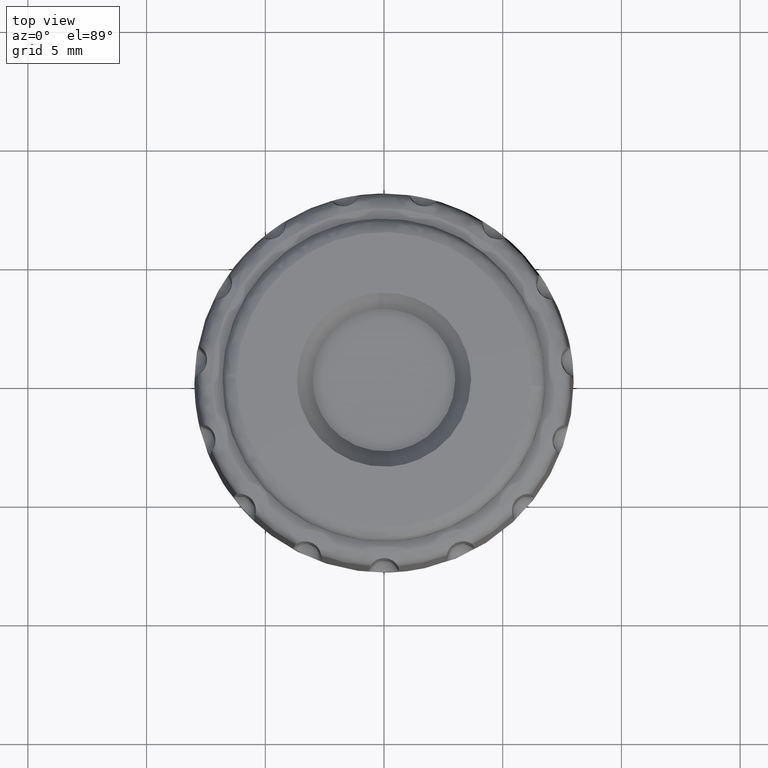
[diagram: clean part render]
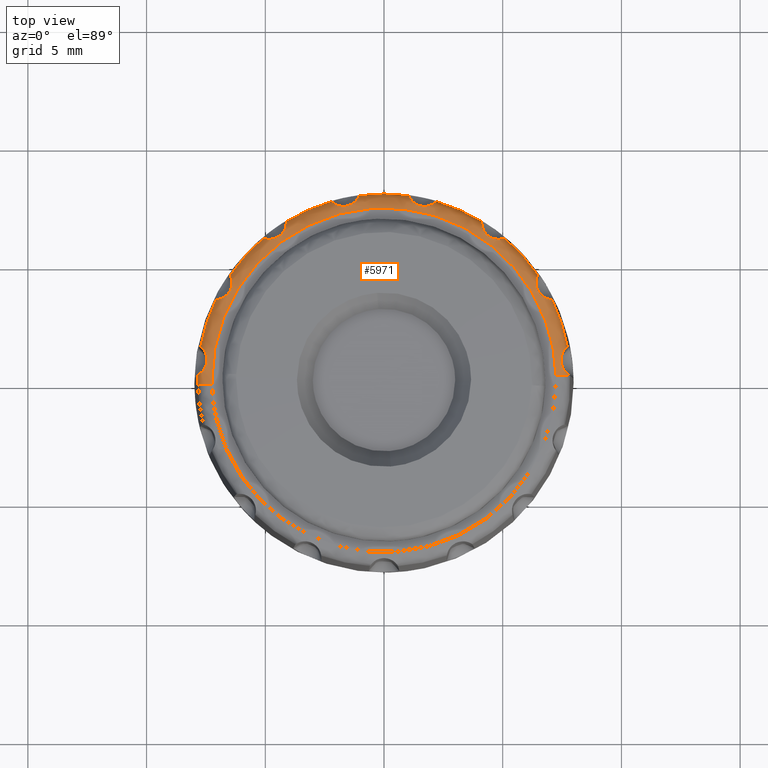
[diagram: same view with one face highlighted and labeled with its STEP entity id]
A machine part, top view. The second image highlights one B-rep face of the part: STEP entity #5971.
In plain terms, the highlighted face is a freeform B-spline surface patch.
Its self-contained STEP definition (entity closure, byte-faithful):
#4390=CARTESIAN_POINT('',(7.846542354548671,0.197246650876180,9.411476093503897));
#4391=VERTEX_POINT('',#4390);
#4400=CARTESIAN_POINT('',(7.721872305810130,1.406982224056692,9.412215999999900));
#4401=VERTEX_POINT('',#4400);
#4409=CARTESIAN_POINT('',(7.721872305810130,1.406982224056692,9.412215999999900));
#4410=CARTESIAN_POINT('',(7.721117612842456,1.406373482650914,9.453916658312460));
#4411=CARTESIAN_POINT('',(7.716546259949650,1.402747407950085,9.494703133304260));
#4412=CARTESIAN_POINT('',(7.704382056428240,1.392425231431946,9.554530500564988));
#4413=CARTESIAN_POINT('',(7.699400647037689,1.388121967861012,9.574361139239034));
#4414=CARTESIAN_POINT('',(7.687850329254422,1.377750221601330,9.612964245185101));
#4415=CARTESIAN_POINT('',(7.681328286460447,1.371723967777374,9.631624095791542));
#4416=CARTESIAN_POINT('',(7.666988684599390,1.357832158165921,9.667679910472774));
#4417=CARTESIAN_POINT('',(7.659170290989231,1.349966728732495,9.685075578569474));
#4418=CARTESIAN_POINT('',(7.642427432206797,1.332140760907272,9.718580455860250));
#4419=CARTESIAN_POINT('',(7.633430504239358,1.322090148266983,9.734796539877543));
#4420=CARTESIAN_POINT('',(7.605849819685999,1.289185079154634,9.780246086397977));
#4421=CARTESIAN_POINT('',(7.586595862351392,1.263543682846567,9.806558188972717));
#4422=CARTESIAN_POINT('',(7.558313980404289,1.218758027318629,9.840683047359628));
#4423=CARTESIAN_POINT('',(7.549013849107958,1.202787350798265,9.851122902274035));
#4424=CARTESIAN_POINT('',(7.531443534889555,1.169606807986927,9.869827023659175));
#4425=CARTESIAN_POINT('',(7.523103110801922,1.152291422299820,9.878177357262988));
#4426=CARTESIAN_POINT('',(7.499761709713219,1.098205209316192,9.900634836975376));
#4427=CARTESIAN_POINT('',(7.486446446843477,1.059033461935675,9.912160037961414));
#4428=CARTESIAN_POINT('',(7.471686135671589,0.998826532829851,9.925068638109872));
#4429=CARTESIAN_POINT('',(7.467581209354346,0.978416872301414,9.928681565801890));
#4430=CARTESIAN_POINT('',(7.461085659630607,0.936942325667759,9.934745167269485));
#4431=CARTESIAN_POINT('',(7.458691548167689,0.915769991909279,9.937202849940764));
#4432=CARTESIAN_POINT('',(7.454299303631226,0.852377360483450,9.942943193825261));
#4433=CARTESIAN_POINT('',(7.455005378453560,0.810140332136143,9.944690814411171));
#4434=CARTESIAN_POINT('',(7.461531443557656,0.746840428916346,9.944650769609007));
#4435=CARTESIAN_POINT('',(7.464646621863363,0.725638010822807,9.944175420141310));
#4436=CARTESIAN_POINT('',(7.472653987350538,0.683850943802031,9.942270578210957));
#4437=CARTESIAN_POINT('',(7.477525911447743,0.663308766751554,9.940848913997691));
#4438=CARTESIAN_POINT('',(7.494643677655452,0.602717224338607,9.935057736009503));
#4439=CARTESIAN_POINT('',(7.509380034122700,0.563692123155797,9.929215263196236));
#4440=CARTESIAN_POINT('',(7.545316103148545,0.488551304133145,9.911764465890164));
#4441=CARTESIAN_POINT('',(7.565977058670350,0.453650401028405,9.900378239336705));
#4442=CARTESIAN_POINT('',(7.599566737170519,0.405866885701438,9.878090663372383));
#4443=CARTESIAN_POINT('',(7.611214996985162,0.390666065698470,9.869777671247265));
#4444=CARTESIAN_POINT('',(7.635214370676316,0.361730787654032,9.851052753833258));
#4445=CARTESIAN_POINT('',(7.647612718681963,0.347965185329158,9.840581195702630));
#4446=CARTESIAN_POINT('',(7.684258051110152,0.310104081433584,9.806645935506699));
#4447=CARTESIAN_POINT('',(7.708331982454190,0.288943443956489,9.780414706692898));
#4448=CARTESIAN_POINT('',(7.742176316864100,0.262309935401218,9.734886311265791));
#4449=CARTESIAN_POINT('',(7.753038147369805,0.254325485182628,9.718699492875610));
#4450=CARTESIAN_POINT('',(7.773114758543574,0.240298517341015,9.685198400415592));
#4451=CARTESIAN_POINT('',(7.782418755644672,0.234184983006149,9.667771210259618));
#4452=CARTESIAN_POINT('',(7.807894863312343,0.218134240517224,9.613473082280525));
#4453=CARTESIAN_POINT('',(7.821622237143789,0.210471129621659,9.574292208103078));
#4454=CARTESIAN_POINT('',(7.840375609508160,0.200329965730659,9.494529114876153));
#4455=CARTESIAN_POINT('',(7.845678614518684,0.197685961322820,9.453230419309332));
#4456=CARTESIAN_POINT('',(7.846542354548671,0.197246650876180,9.411476093503897));
#4457=B_SPLINE_CURVE_WITH_KNOTS('',3,(#4409,#4410,#4411,#4412,#4413,#4414,#4415,#4416,#4417,#4418,#4419,#4420,#4421,#4422,#4423,#4424,#4425,#4426,#4427,#4428,#4429,#4430,#4431,#4432,#4433,#4434,#4435,#4436,#4437,#4438,#4439,#4440,#4441,#4442,#4443,#4444,#4445,#4446,#4447,#4448,#4449,#4450,#4451,#4452,#4453,#4454,#4455,#4456),.UNSPECIFIED.,.F.,.U.,(4,2,2,2,2,2,2,2,2,2,2,2,2,2,2,2,2,2,2,2,2,2,2,4),(0.0,0.062500000000003,0.093750000000003,0.125000000000003,0.156250000000004,0.187500000000004,0.250000000000006,0.281250000000007,0.312500000000007,0.375000000000007,0.406250000000006,0.437500000000006,0.500000000000006,0.531250000000006,0.562500000000006,0.625000000000006,0.687500000000005,0.718750000000005,0.750000000000004,0.812500000000004,0.843750000000004,0.875000000000003,0.937500000000002,1.0),.UNSPECIFIED.);
#4458=EDGE_CURVE('',#4401,#4391,#4457,.T.);
#4481=CARTESIAN_POINT('',(7.074129325331851,3.400530131395555,9.412215999999900));
#4482=VERTEX_POINT('',#4481);
#4491=CARTESIAN_POINT('',(6.482010142788901,4.426110639696080,9.412215999999900));
#4492=VERTEX_POINT('',#4491);
#4500=CARTESIAN_POINT('',(6.482010142788903,4.426110639696085,9.412215999999901));
#4501=CARTESIAN_POINT('',(6.481562312190985,4.425260060233469,9.453916978650057));
#4502=CARTESIAN_POINT('',(6.478825490045807,4.420162378447508,9.494705356962381));
#4503=CARTESIAN_POINT('',(6.471809163877285,4.405998412010201,9.554538196299596));
#4504=CARTESIAN_POINT('',(6.468966009681444,4.400130267479691,9.574371121964862));
#4505=CARTESIAN_POINT('',(6.462529368794649,4.386173399317736,9.612979769021209));
#4506=CARTESIAN_POINT('',(6.455395325381204,4.370109700233718,9.650306229437662));
#4507=CARTESIAN_POINT('',(6.447349558743116,4.349711265213628,9.685106089512376));
#4508=CARTESIAN_POINT('',(6.439123144746449,4.326995675797720,9.718620688036369));
#4509=CARTESIAN_POINT('',(6.434889120848323,4.314369489779508,9.734842281239377));
#4510=CARTESIAN_POINT('',(6.422737580990151,4.273799311015933,9.780309983706946));
#4511=CARTESIAN_POINT('',(6.415310664116266,4.243100838555000,9.806636376722524));
#4512=CARTESIAN_POINT('',(6.407217417173983,4.191670654085585,9.840786535082374));
#4513=CARTESIAN_POINT('',(6.405047781827621,4.173651863194812,9.851235461969329));
#4514=CARTESIAN_POINT('',(6.402138215484778,4.136932943756942,9.869958542599813));
#4515=CARTESIAN_POINT('',(6.401375925788222,4.118110164900845,9.878318822856286));
#4516=CARTESIAN_POINT('',(6.401467960020995,4.060424729297188,9.900807544248762));
#4517=CARTESIAN_POINT('',(6.404809673756259,4.020115209901824,9.912355600197692));
#4518=CARTESIAN_POINT('',(6.415151097445732,3.960494205596257,9.925299691225186));
#4519=CARTESIAN_POINT('',(6.419476691724560,3.940650932078134,9.928924707190696));
#4520=CARTESIAN_POINT('',(6.429951039257058,3.901082792806886,9.935012990686717));
#4521=CARTESIAN_POINT('',(6.436139099045214,3.881260877222747,9.937483331904756));
#4522=CARTESIAN_POINT('',(6.457199658434369,3.823047565485129,9.943261753614442));
#4523=CARTESIAN_POINT('',(6.474545979494460,3.785747888319517,9.945034975578091));
#4524=CARTESIAN_POINT('',(6.505531276979104,3.732085059577762,9.945033646851440));
#4525=CARTESIAN_POINT('',(6.516757677453800,3.714490866700090,9.944571324500885));
#4526=CARTESIAN_POINT('',(6.540587457104339,3.680579443860932,9.942692276019683));
#4527=CARTESIAN_POINT('',(6.553155554098512,3.664291719514169,9.941283351151190));
#4528=CARTESIAN_POINT('',(6.592733285137359,3.617373488037235,9.935529924069952));
#4529=CARTESIAN_POINT('',(6.621610126669980,3.588673680574182,9.929712001450543));
#4530=CARTESIAN_POINT('',(6.684110223030128,3.536508172072415,9.912308955185338));
#4531=CARTESIAN_POINT('',(6.716761554634962,3.513903120199540,9.900945160164985));
#4532=CARTESIAN_POINT('',(6.766302784189892,3.485123912933033,9.878688632862497));
#4533=CARTESIAN_POINT('',(6.782941148984301,3.476362693510477,9.870385579118487));
#4534=CARTESIAN_POINT('',(6.816279277734760,3.460432855535290,9.851679695909551));
#4535=CARTESIAN_POINT('',(6.833034451757648,3.453255849313717,9.841217255451332));
#4536=CARTESIAN_POINT('',(6.881439832376849,3.434557464603534,9.807307234463062));
#4537=CARTESIAN_POINT('',(6.911771595692912,3.425577136259483,9.781090340372820));
#4538=CARTESIAN_POINT('',(6.953181645165127,3.415724472798575,9.735580212510058));
#4539=CARTESIAN_POINT('',(6.966248877754384,3.413063602272585,9.719398916058831));
#4540=CARTESIAN_POINT('',(6.990112729918895,3.408796072527263,9.685907587720942));
#4541=CARTESIAN_POINT('',(7.001018829524109,3.407162721267363,9.668484688392208));
#4542=CARTESIAN_POINT('',(7.030609232618591,3.403303711013544,9.614197892450914));
#4543=CARTESIAN_POINT('',(7.046163796582861,3.402101444279429,9.575022528015019));
#4544=CARTESIAN_POINT('',(7.067283786595285,3.400750572688478,9.495266763563880));
#4545=CARTESIAN_POINT('',(7.073167565202072,3.400567636082371,9.453970005060404));
#4546=CARTESIAN_POINT('',(7.074129325331870,3.400530131395556,9.412215999999901));
#4547=B_SPLINE_CURVE_WITH_KNOTS('',3,(#4500,#4501,#4502,#4503,#4504,#4505,#4506,#4507,#4508,#4509,#4510,#4511,#4512,#4513,#4514,#4515,#4516,#4517,#4518,#4519,#4520,#4521,#4522,#4523,#4524,#4525,#4526,#4527,#4528,#4529,#4530,#4531,#4532,#4533,#4534,#4535,#4536,#4537,#4538,#4539,#4540,#4541,#4542,#4543,#4544,#4545,#4546),.UNSPECIFIED.,.F.,.U.,(4,2,2,1,2,2,2,2,2,2,2,2,2,2,2,2,2,2,2,2,2,2,2,4),(0.0,0.062499999999994,0.093749999999993,0.124999999999991,0.156249999999989,0.187499999999988,0.249999999999985,0.281249999999985,0.312499999999985,0.374999999999986,0.406249999999987,0.437499999999988,0.499999999999990,0.531249999999991,0.562499999999993,0.624999999999995,0.687499999999997,0.718749999999997,0.749999999999998,0.812499999999999,0.843749999999999,0.874999999999999,0.937499999999999,1.0),.UNSPECIFIED.);
#4548=EDGE_CURVE('',#4492,#4482,#4547,.T.);
#4571=CARTESIAN_POINT('',(5.079418501611291,5.983846469582760,9.412215999999900));
#4572=VERTEX_POINT('',#4571);
#4581=CARTESIAN_POINT('',(4.121349538866006,6.679924315779180,9.412215999999900));
#4582=VERTEX_POINT('',#4581);
#4590=CARTESIAN_POINT('',(4.121349538866006,6.679924315779189,9.412215999999901));
#4591=CARTESIAN_POINT('',(4.121286387092780,6.678965123660690,9.453916978650058));
#4592=CARTESIAN_POINT('',(4.120859589630765,6.673194993768592,9.494705356962385));
#4593=CARTESIAN_POINT('',(4.120210860891524,6.657401769615080,9.554538196299596));
#4594=CARTESIAN_POINT('',(4.120000299697958,6.650884537841074,9.574371121964861));
#4595=CARTESIAN_POINT('',(4.119796905357394,6.635516286621828,9.612979769021209));
#4596=CARTESIAN_POINT('',(4.119813327443231,6.617939690421143,9.650306229437664));
#4597=CARTESIAN_POINT('',(4.120759944861823,6.596032284652173,9.685106089512376));
#4598=CARTESIAN_POINT('',(4.122484004306993,6.571934577110040,9.718620688036371));
#4599=CARTESIAN_POINT('',(4.123751563523211,6.558677849558723,9.734842281239372));
#4600=CARTESIAN_POINT('',(4.129151957801692,6.516672670503398,9.780309983706939));
#4601=CARTESIAN_POINT('',(4.134853325263583,6.485607421192459,9.806636376722521));
#4602=CARTESIAN_POINT('',(4.148378316865741,6.435331789691819,9.840786535082373));
#4603=CARTESIAN_POINT('',(4.153725158869530,6.417988334923865,9.851235461969329));
#4604=CARTESIAN_POINT('',(4.166002067782846,6.383260505614755,9.869958542599807));
#4605=CARTESIAN_POINT('',(4.172961595378435,6.365754990338330,9.878318822856281));
#4606=CARTESIAN_POINT('',(4.196508453265531,6.313094156365364,9.900807544248762));
#4607=CARTESIAN_POINT('',(4.215956619271993,6.277628775448775,9.912355600197691));
#4608=CARTESIAN_POINT('',(4.249654027057117,6.227368513741414,9.925299691225185));
#4609=CARTESIAN_POINT('',(4.261676640520544,6.211000159050453,9.928924707190692));
#4610=CARTESIAN_POINT('',(4.287339245270574,6.179113166105613,9.935012990686721));
#4611=CARTESIAN_POINT('',(4.301054618585687,6.163521855827334,9.937483331904751));
#4612=CARTESIAN_POINT('',(4.343971883949545,6.118907450542345,9.943261753614442));
#4613=CARTESIAN_POINT('',(4.374989682238955,6.091887884293861,9.945034975578091));
#4614=CARTESIAN_POINT('',(4.425122798830130,6.055467306736185,9.945033646851440));
#4615=CARTESIAN_POINT('',(4.442534828938155,6.043960400194806,9.944571324500885));
#4616=CARTESIAN_POINT('',(4.478097434182050,6.022673218478188,9.942692276019677));
#4617=CARTESIAN_POINT('',(4.496203776426438,6.012905547467131,9.941283351151188));
#4618=CARTESIAN_POINT('',(4.551443196810760,5.986141323684052,9.935529924069952));
#4619=CARTESIAN_POINT('',(4.589496767568392,5.971668014528573,9.929712001450541));
#4620=CARTESIAN_POINT('',(4.667811070512783,5.949433530576603,9.912308955185342));
#4621=CARTESIAN_POINT('',(4.706833849101687,5.942063281127272,9.900945160164977));
#4622=CARTESIAN_POINT('',(4.763797572481584,5.935922400457421,9.878688632862497));
#4623=CARTESIAN_POINT('',(4.782560984039297,5.934686060893281,9.870385579118484));
#4624=CARTESIAN_POINT('',(4.819496128948353,5.933693268344457,9.851679695909551));
#4625=CARTESIAN_POINT('',(4.837721893486872,5.933951690147488,9.841217255451330));
#4626=CARTESIAN_POINT('',(4.889547727304959,5.936558107750103,9.807307234463055));
#4627=CARTESIAN_POINT('',(4.920909800509016,5.940691209173002,9.781090340372813));
#4628=CARTESIAN_POINT('',(4.962747202366560,5.948533337734540,9.735580212510051));
#4629=CARTESIAN_POINT('',(4.975766986887835,5.951417433869790,9.719398916058823));
#4630=CARTESIAN_POINT('',(4.999303461357421,5.957225154575849,9.685907587720939));
#4631=CARTESIAN_POINT('',(5.009931022920773,5.960168924294107,9.668484688392208));
#4632=CARTESIAN_POINT('',(5.038532802133784,5.968679044227643,9.614197892450910));
#4633=CARTESIAN_POINT('',(5.053231609324469,5.973907330045152,9.575022528015017));
#4634=CARTESIAN_POINT('',(5.073075129241908,5.981263521278830,9.495266763563880));
#4635=CARTESIAN_POINT('',(5.078524635482977,5.983489548732408,9.453970005060402));
#4636=CARTESIAN_POINT('',(5.079418501611309,5.983846469582767,9.412215999999900));
#4637=B_SPLINE_CURVE_WITH_KNOTS('',3,(#4590,#4591,#4592,#4593,#4594,#4595,#4596,#4597,#4598,#4599,#4600,#4601,#4602,#4603,#4604,#4605,#4606,#4607,#4608,#4609,#4610,#4611,#4612,#4613,#4614,#4615,#4616,#4617,#4618,#4619,#4620,#4621,#4622,#4623,#4624,#4625,#4626,#4627,#4628,#4629,#4630,#4631,#4632,#4633,#4634,#4635,#4636),.UNSPECIFIED.,.F.,.U.,(4,2,2,1,2,2,2,2,2,2,2,2,2,2,2,2,2,2,2,2,2,2,2,4),(0.0,0.062500000000006,0.093750000000008,0.125000000000010,0.156250000000012,0.187500000000014,0.250000000000016,0.281250000000017,0.312500000000017,0.375000000000017,0.406250000000016,0.437500000000016,0.500000000000014,0.531250000000014,0.562500000000013,0.625000000000011,0.687500000000009,0.718750000000007,0.750000000000005,0.812500000000004,0.843750000000003,0.875000000000003,0.937500000000001,1.0),.UNSPECIFIED.);
#4638=EDGE_CURVE('',#4582,#4572,#4637,.T.);
#4661=CARTESIAN_POINT('',(2.206430073893710,7.532501391640530,9.412215999999900));
#4662=VERTEX_POINT('',#4661);
#4671=CARTESIAN_POINT('',(1.048070158388030,7.778718392456789,9.412215999999900));
#4672=VERTEX_POINT('',#4671);
#4680=CARTESIAN_POINT('',(1.048070158388027,7.778718392456793,9.412215999999900));
#4681=CARTESIAN_POINT('',(1.048402604954796,7.777816440713687,9.453916978650055));
#4682=CARTESIAN_POINT('',(1.050359629334463,7.772371570593778,9.494705356962383));
#4683=CARTESIAN_POINT('',(1.056190669117031,7.757679880657141,9.554538196299598));
#4684=CARTESIAN_POINT('',(1.058649108868997,7.751640450220563,9.574371121964864));
#4685=CARTESIAN_POINT('',(1.064714129803928,7.737518126196007,9.612979769021209));
#4686=CARTESIAN_POINT('',(1.071878177861213,7.721467786040119,9.650306229437664));
#4687=CARTESIAN_POINT('',(1.081653500585064,7.701839399002258,9.685106089512372));
#4688=CARTESIAN_POINT('',(1.093029927931416,7.680526285888730,9.718620688036364));
#4689=CARTESIAN_POINT('',(1.099579897758076,7.668931225431532,9.734842281239375));
#4690=CARTESIAN_POINT('',(1.121598448941423,7.632754123148187,9.780309983706943));
#4691=CARTESIAN_POINT('',(1.139442282509628,7.606693560812030,9.806636376722523));
#4692=CARTESIAN_POINT('',(1.172246918737520,7.566265595706400,9.840786535082376));
#4693=CARTESIAN_POINT('',(1.184185720534469,7.552596317950981,9.851235461969333));
#4694=CARTESIAN_POINT('',(1.209526315620616,7.525864335950607,9.869958542599813));
#4695=CARTESIAN_POINT('',(1.223004294961750,7.512702946877758,9.878318822856285));
#4696=CARTESIAN_POINT('',(1.265934510858000,7.474172251138062,9.900807544248762));
#4697=CARTESIAN_POINT('',(1.298126364552101,7.449683295253598,9.912355600197692));
#4698=CARTESIAN_POINT('',(1.349353168495497,7.417474231993787,9.925299691225185));
#4699=CARTESIAN_POINT('',(1.366993982053678,7.407411033357886,9.928924707190694));
#4700=CARTESIAN_POINT('',(1.403407546522510,7.388718737503858,9.935012990686721));
#4701=CARTESIAN_POINT('',(1.422278720718148,7.380053911721161,9.937483331904758));
#4702=CARTESIAN_POINT('',(1.479631906984181,7.356752648871717,9.943261753614445));
#4703=CARTESIAN_POINT('',(1.518957923390817,7.344685122009781,9.945034975578093));
#4704=CARTESIAN_POINT('',(1.579570387784840,7.331804244366468,9.945033646851440));
#4705=CARTESIAN_POINT('',(1.600157349337196,7.328374272839345,9.944571324500885));
#4706=CARTESIAN_POINT('',(1.641303682651654,7.323392079352050,9.942692276019685));
#4707=CARTESIAN_POINT('',(1.661817519081243,7.321833380731013,9.941283351151188));
#4708=CARTESIAN_POINT('',(1.723167231192207,7.319850942079221,9.935529924069954));
#4709=CARTESIAN_POINT('',(1.763817723085023,7.322106697870186,9.929712001450541));
#4710=CARTESIAN_POINT('',(1.844404978171463,7.333647782737262,9.912308955185344));
#4711=CARTESIAN_POINT('',(1.883051810815606,7.342786718797871,9.900945160164985));
#4712=CARTESIAN_POINT('',(1.937588482748904,7.360345978780638,9.878688632862497));
#4713=CARTESIAN_POINT('',(1.955232576751350,7.366848293417349,9.870385579118487));
#4714=CARTESIAN_POINT('',(1.989378315718970,7.380964209145816,9.851679695909553));
#4715=CARTESIAN_POINT('',(2.005923270508536,7.388613375496020,9.841217255451333));
#4716=CARTESIAN_POINT('',(2.052208400035450,7.412073922129385,9.807307234463059));
#4717=CARTESIAN_POINT('',(2.079177995755029,7.428605802535165,9.781090340372817));
#4718=CARTESIAN_POINT('',(2.114208683135868,7.452786747847359,9.735580212510056));
#4719=CARTESIAN_POINT('',(2.124929780564403,7.460717124220874,9.719398916058831));
#4720=CARTESIAN_POINT('',(2.144069207081110,7.475595887706752,9.685907587720944));
#4721=CARTESIAN_POINT('',(2.152580628659937,7.482607773875572,9.668484688392210));
#4722=CARTESIAN_POINT('',(2.175248276526541,7.502015546947942,9.614197892450918));
#4723=CARTESIAN_POINT('',(2.186549769645900,7.512770367201745,9.575022528015017));
#4724=CARTESIAN_POINT('',(2.201685694601907,7.527561668966844,9.495266763563880));
#4725=CARTESIAN_POINT('',(2.205758659340970,7.531811760110567,9.453970005060402));
#4726=CARTESIAN_POINT('',(2.206430073893730,7.532501391640545,9.412215999999900));
#4727=B_SPLINE_CURVE_WITH_KNOTS('',3,(#4680,#4681,#4682,#4683,#4684,#4685,#4686,#4687,#4688,#4689,#4690,#4691,#4692,#4693,#4694,#4695,#4696,#4697,#4698,#4699,#4700,#4701,#4702,#4703,#4704,#4705,#4706,#4707,#4708,#4709,#4710,#4711,#4712,#4713,#4714,#4715,#4716,#4717,#4718,#4719,#4720,#4721,#4722,#4723,#4724,#4725,#4726),.UNSPECIFIED.,.F.,.U.,(4,2,2,1,2,2,2,2,2,2,2,2,2,2,2,2,2,2,2,2,2,2,2,4),(0.0,0.062499999999996,0.093749999999996,0.124999999999995,0.156249999999995,0.187499999999994,0.249999999999993,0.281249999999993,0.312499999999993,0.374999999999994,0.406249999999995,0.437499999999996,0.499999999999998,0.531249999999998,0.562499999999999,0.625000000000000,0.687500000000002,0.718750000000002,0.750000000000002,0.812500000000002,0.843750000000001,0.875000000000001,0.937500000000000,1.0),.UNSPECIFIED.);
#4728=EDGE_CURVE('',#4672,#4662,#4727,.T.);
#4751=CARTESIAN_POINT('',(-1.048070158388034,7.778718392456789,9.412215999999900));
#4752=VERTEX_POINT('',#4751);
#4761=CARTESIAN_POINT('',(-2.206430073893715,7.532501391640520,9.412215999999900));
#4762=VERTEX_POINT('',#4761);
#4770=CARTESIAN_POINT('',(-2.206430073893715,7.532501391640527,9.412215999999900));
#4771=CARTESIAN_POINT('',(-2.205759512018525,7.531812635923166,9.453916978650055));
#4772=CARTESIAN_POINT('',(-2.201757053091432,7.527634493084276,9.494705356962381));
#4773=CARTESIAN_POINT('',(-2.190454484538796,7.516584664024370,9.554538196299596));
#4774=CARTESIAN_POINT('',(-2.185752130408635,7.512067307314205,9.574371121964862));
#4775=CARTESIAN_POINT('',(-2.174467391416843,7.501632788605471,9.612979769021205));
#4776=CARTESIAN_POINT('',(-2.167930935336723,7.495757950142844,9.631642851175627));
#4777=CARTESIAN_POINT('',(-2.152937553418479,7.482906233185291,9.667706159475015));
#4778=CARTESIAN_POINT('',(-2.144480660456412,7.475928512250487,9.685106089512370));
#4779=CARTESIAN_POINT('',(-2.125418952848660,7.461085224446459,9.718620688036364));
#4780=CARTESIAN_POINT('',(-2.114719121699195,7.453156722374231,9.734842281239374));
#4781=CARTESIAN_POINT('',(-2.079889621142840,7.429063046506317,9.780309983706943));
#4782=CARTESIAN_POINT('',(-2.052988682398402,7.412513279125649,9.806636376722523));
#4783=CARTESIAN_POINT('',(-2.006576621169343,7.388923342858322,9.840786535082380));
#4784=CARTESIAN_POINT('',(-1.990110186870536,7.381291784420844,9.851235461969331));
#4785=CARTESIAN_POINT('',(-1.956087524714030,7.367177852269499,9.869958542599807));
#4786=CARTESIAN_POINT('',(-1.938421558699031,7.360636313138391,9.878318822856286));
#4787=CARTESIAN_POINT('',(-1.883531009130858,7.342898062965741,9.900807544248764));
#4788=CARTESIAN_POINT('',(-1.844161731706638,7.333619895061002,9.912355600197691));
#4789=CARTESIAN_POINT('',(-1.784263111387690,7.325031269896519,9.925299691225185));
#4790=CARTESIAN_POINT('',(-1.764054354660722,7.323013245781118,9.928924707190694));
#4791=CARTESIAN_POINT('',(-1.723186066576597,7.320747714785235,9.935012990686721));
#4792=CARTESIAN_POINT('',(-1.702422088958099,7.320507600593418,9.937483331904756));
#4793=CARTESIAN_POINT('',(-1.640549868732626,7.322548480211523,9.943261753614445));
#4794=CARTESIAN_POINT('',(-1.599715459711113,7.327519577760600,9.945034975578095));
#4795=CARTESIAN_POINT('',(-1.539104093254917,7.340405620795274,9.945033646851435));
#4796=CARTESIAN_POINT('',(-1.518901872937312,7.345645657519762,9.944571324500885));
#4797=CARTESIAN_POINT('',(-1.479286386385064,7.357829918777549,9.942692276019679));
#4798=CARTESIAN_POINT('',(-1.459912084451304,7.364749705698444,9.941283351151190));
#4799=CARTESIAN_POINT('',(-1.403060003182317,7.387891833830726,9.935529924069954));
#4800=CARTESIAN_POINT('',(-1.366841429500713,7.406486613898973,9.929712001450541));
#4801=CARTESIAN_POINT('',(-1.297915490788897,7.449807709164110,9.912308955185340));
#4802=CARTESIAN_POINT('',(-1.266326992549143,7.473875625665159,9.900945160164985));
#4803=CARTESIAN_POINT('',(-1.223647258089821,7.512098870728660,9.878688632862499));
#4804=CARTESIAN_POINT('',(-1.210173305787226,7.525215530293857,9.870385579118487));
#4805=CARTESIAN_POINT('',(-1.184721081232845,7.551999384231095,9.851679695909551));
#4806=CARTESIAN_POINT('',(-1.172717709181544,7.565716684776029,9.841217255451333));
#4807=CARTESIAN_POINT('',(-1.139976403328210,7.605974818794855,9.807307234463060));
#4808=CARTESIAN_POINT('',(-1.122062573204108,7.632046965873939,9.781090340372817));
#4809=CARTESIAN_POINT('',(-1.099895724391926,7.668385622815317,9.735580212510056));
#4810=CARTESIAN_POINT('',(-1.093327089199635,7.679991045306907,9.719398916058827));
#4811=CARTESIAN_POINT('',(-1.081894091356778,7.701368178196573,9.685907587720941));
#4812=CARTESIAN_POINT('',(-1.076970511877295,7.711235761996380,9.668484688392208));
#4813=CARTESIAN_POINT('',(-1.064156437602351,7.738185407929293,9.614197892450919));
#4814=CARTESIAN_POINT('',(-1.058206389385496,7.752607156493024,9.575022528015019));
#4815=CARTESIAN_POINT('',(-1.050395198321375,7.772276018339611,9.495266763563883));
#4816=CARTESIAN_POINT('',(-1.048403027689429,7.777815293803855,9.453970005060407));
#4817=CARTESIAN_POINT('',(-1.048070158388023,7.778718392456814,9.412215999999901));
#4818=B_SPLINE_CURVE_WITH_KNOTS('',3,(#4770,#4771,#4772,#4773,#4774,#4775,#4776,#4777,#4778,#4779,#4780,#4781,#4782,#4783,#4784,#4785,#4786,#4787,#4788,#4789,#4790,#4791,#4792,#4793,#4794,#4795,#4796,#4797,#4798,#4799,#4800,#4801,#4802,#4803,#4804,#4805,#4806,#4807,#4808,#4809,#4810,#4811,#4812,#4813,#4814,#4815,#4816,#4817),.UNSPECIFIED.,.F.,.U.,(4,2,2,2,2,2,2,2,2,2,2,2,2,2,2,2,2,2,2,2,2,2,2,4),(0.0,0.062499999999998,0.093749999999998,0.124999999999998,0.156249999999998,0.187499999999998,0.249999999999998,0.281249999999999,0.312499999999999,0.374999999999999,0.406249999999999,0.437499999999998,0.499999999999998,0.531249999999998,0.562499999999998,0.624999999999998,0.687499999999998,0.718749999999998,0.749999999999998,0.812499999999999,0.843749999999999,0.874999999999999,0.937500000000000,1.0),.UNSPECIFIED.);
#4819=EDGE_CURVE('',#4762,#4752,#4818,.T.);
#4842=CARTESIAN_POINT('',(-4.121349538866011,6.679924315779180,9.412215999999900));
#4843=VERTEX_POINT('',#4842);
#4852=CARTESIAN_POINT('',(-5.079418501611291,5.983846469582750,9.412215999999900));
#4853=VERTEX_POINT('',#4852);
#4861=CARTESIAN_POINT('',(-5.079418501611295,5.983846469582753,9.412215999999901));
#4862=CARTESIAN_POINT('',(-5.078525770667770,5.983490002011825,9.453916978650055));
#4863=CARTESIAN_POINT('',(-5.073169938702938,5.981301025308026,9.494705356962385));
#4864=CARTESIAN_POINT('',(-5.058350158163595,5.975803672953855,9.554538196299594));
#4865=CARTESIAN_POINT('',(-5.052216969403892,5.973589481984186,9.574371121964866));
#4866=CARTESIAN_POINT('',(-5.037663746245557,5.968646991670646,9.612979769021210));
#4867=CARTESIAN_POINT('',(-5.020942022573605,5.963230360094087,9.650305933330049));
#4868=CARTESIAN_POINT('',(-4.999814633309784,5.957361669052223,9.685106089512376));
#4869=CARTESIAN_POINT('',(-4.976363587856191,5.951554745866037,9.718620688036372));
#4870=CARTESIAN_POINT('',(-4.963363993394576,5.948663712215256,9.734842281239375));
#4871=CARTESIAN_POINT('',(-4.921745880527488,5.940819478204513,9.780309983706950));
#4872=CARTESIAN_POINT('',(-4.890439253303086,5.936642110909358,9.806636376722526));
#4873=CARTESIAN_POINT('',(-4.838444834099702,5.933969117768799,9.840786535082380));
#4874=CARTESIAN_POINT('',(-4.820297963382158,5.933694844433629,9.851235461969331));
#4875=CARTESIAN_POINT('',(-4.783476061528338,5.934639389221336,9.869958542599814));
#4876=CARTESIAN_POINT('',(-4.764676714853728,5.935848791575748,9.878318822856288));
#4877=CARTESIAN_POINT('',(-4.707316906298957,5.941970091571942,9.900807544248767));
#4878=CARTESIAN_POINT('',(-4.667577510869923,5.949506991167170,9.912355600197694));
#4879=CARTESIAN_POINT('',(-4.609364089790452,5.966023855414163,9.925299691225190));
#4880=CARTESIAN_POINT('',(-4.590081667523580,5.972399940521989,9.928924707190697));
#4881=CARTESIAN_POINT('',(-4.551825154110647,5.986952905275139,9.935012990686719));
#4882=CARTESIAN_POINT('',(-4.532758653434343,5.995179020599344,9.937483331904764));
#4883=CARTESIAN_POINT('',(-4.477065668217889,6.022209156058212,9.943261753614443));
#4884=CARTESIAN_POINT('',(-4.441783506870279,6.043359330091064,9.945034975578100));
#4885=CARTESIAN_POINT('',(-4.391653494249162,6.079784179897010,9.945033646851442));
#4886=CARTESIAN_POINT('',(-4.375329162590634,6.092788174919208,9.944571324500890));
#4887=CARTESIAN_POINT('',(-4.344094400320875,6.120032121460064,9.942692276019685));
#4888=CARTESIAN_POINT('',(-4.329209625697299,6.134233899899980,9.941283351151192));
#4889=CARTESIAN_POINT('',(-4.286685416606643,6.178499110622627,9.935529924069954));
#4890=CARTESIAN_POINT('',(-4.261161281561209,6.210217708566087,9.929712001450540));
#4891=CARTESIAN_POINT('',(-4.215814580199790,6.277828203298148,9.912308955185342));
#4892=CARTESIAN_POINT('',(-4.196746354682573,6.312663538826443,9.900945160164982));
#4893=CARTESIAN_POINT('',(-4.173303271518461,6.364941622651917,9.878688632862497));
#4894=CARTESIAN_POINT('',(-4.166329229675846,6.382404637545672,9.870385579118487));
#4895=CARTESIAN_POINT('',(-4.153971440386360,6.417225258022257,9.851679695909553));
#4896=CARTESIAN_POINT('',(-4.148585143148205,6.434638846879935,9.841217255451333));
#4897=CARTESIAN_POINT('',(-4.135048930195919,6.484733571178706,9.807307234463057));
#4898=CARTESIAN_POINT('',(-4.129288329637791,6.515837873843100,9.781090340372817));
#4899=CARTESIAN_POINT('',(-4.123818168933392,6.558050958502164,9.735580212510055));
#4900=CARTESIAN_POINT('',(-4.122537772676270,6.571324744131085,9.719398916058829));
#4901=CARTESIAN_POINT('',(-4.120788072699815,6.595503945942753,9.685907587720942));
#4902=CARTESIAN_POINT('',(-4.120303666940997,6.606521032490381,9.668484688392212));
#4903=CARTESIAN_POINT('',(-4.119558836112058,6.636352712672178,9.614197892450919));
#4904=CARTESIAN_POINT('',(-4.119989050188894,6.651947738201708,9.575022528015024));
#4905=CARTESIAN_POINT('',(-4.120853218914085,6.673093235230491,9.495266763563876));
#4906=CARTESIAN_POINT('',(-4.121286306789822,6.678963903964756,9.453970005060402));
#4907=CARTESIAN_POINT('',(-4.121349538866007,6.679924315779212,9.412215999999901));
#4908=B_SPLINE_CURVE_WITH_KNOTS('',3,(#4861,#4862,#4863,#4864,#4865,#4866,#4867,#4868,#4869,#4870,#4871,#4872,#4873,#4874,#4875,#4876,#4877,#4878,#4879,#4880,#4881,#4882,#4883,#4884,#4885,#4886,#4887,#4888,#4889,#4890,#4891,#4892,#4893,#4894,#4895,#4896,#4897,#4898,#4899,#4900,#4901,#4902,#4903,#4904,#4905,#4906,#4907),.UNSPECIFIED.,.F.,.U.,(4,2,2,1,2,2,2,2,2,2,2,2,2,2,2,2,2,2,2,2,2,2,2,4),(0.0,0.062500000000000,0.093749999999998,0.124999999999997,0.156249999999996,0.187499999999994,0.249999999999992,0.281249999999993,0.312499999999993,0.374999999999996,0.406249999999996,0.437499999999997,0.499999999999998,0.531249999999999,0.562500000000000,0.625000000000002,0.687500000000004,0.718750000000004,0.750000000000004,0.812500000000003,0.843750000000002,0.875000000000002,0.937500000000001,1.0),.UNSPECIFIED.);
#4909=EDGE_CURVE('',#4853,#4843,#4908,.T.);
#4932=CARTESIAN_POINT('',(-6.482010142788910,4.426110639696070,9.412215999999900));
#4933=VERTEX_POINT('',#4932);
#4942=CARTESIAN_POINT('',(-7.074129325331851,3.400530131395550,9.412215999999900));
#4943=VERTEX_POINT('',#4942);
#4951=CARTESIAN_POINT('',(-7.074129325331852,3.400530131395548,9.412215999999900));
#4952=CARTESIAN_POINT('',(-7.073168786610333,3.400567588452469,9.453916978650057));
#4953=CARTESIAN_POINT('',(-7.067385653610693,3.400746271842083,9.494705356962381));
#4954=CARTESIAN_POINT('',(-7.051611135773372,3.401751938357561,9.554538196299593));
#4955=CARTESIAN_POINT('',(-7.045107596438949,3.402223766862339,9.574371121964857));
#4956=CARTESIAN_POINT('',(-7.029802273610030,3.403627906420314,9.612979769021205));
#4957=CARTESIAN_POINT('',(-7.012323680417802,3.405481493134580,9.650306229437659));
#4958=CARTESIAN_POINT('',(-6.990635234173909,3.408712872343118,9.685106089512368));
#4959=CARTESIAN_POINT('',(-6.966849749679462,3.412946383547910,9.718620688036364));
#4960=CARTESIAN_POINT('',(-6.953798139885720,3.415592704301011,9.734842281239374));
#4961=CARTESIAN_POINT('',(-6.912587564511306,3.425354251470519,9.780309983706941));
#4962=CARTESIAN_POINT('',(-6.882288449065816,3.434271589016408,9.806636376722523));
#4963=CARTESIAN_POINT('',(-6.833701979322845,3.452977723799998,9.840786535082373));
#4964=CARTESIAN_POINT('',(-6.817012430992773,3.460108159918485,9.851235461969326));
#4965=CARTESIAN_POINT('',(-6.783758130788642,3.475947861270524,9.869958542599807));
#4966=CARTESIAN_POINT('',(-6.767075981281166,3.484699088456309,9.878318822856279));
#4967=CARTESIAN_POINT('',(-6.717164945736417,3.513621510241738,9.900807544248758));
#4968=CARTESIAN_POINT('',(-6.683926734793325,3.536670278926335,9.912355600197696));
#4969=CARTESIAN_POINT('',(-6.637464142310298,3.575436716705498,9.925299691225185));
#4970=CARTESIAN_POINT('',(-6.622442160488776,3.589104427996491,9.928924707190696));
#4971=CARTESIAN_POINT('',(-6.593412320465641,3.617959548683325,9.935012990686717));
#4972=CARTESIAN_POINT('',(-6.579340067912185,3.633229523452075,9.937483331904753));
#4973=CARTESIAN_POINT('',(-6.539456140803563,3.680575158769801,9.943261753614440));
#4974=CARTESIAN_POINT('',(-6.515826833355233,3.714247352052848,9.945034975578089));
#4975=CARTESIAN_POINT('',(-6.484846109168258,3.767912821189243,9.945033646851440));
#4976=CARTESIAN_POINT('',(-6.475222291414458,3.786432265632224,9.944571324500885));
#4977=CARTESIAN_POINT('',(-6.457769027582540,3.824025171595755,9.942692276019679));
#4978=CARTESIAN_POINT('',(-6.449947493025493,3.843053325043318,9.941283351151188));
#4979=CARTESIAN_POINT('',(-6.429103978185252,3.900787761285573,9.935529924069952));
#4980=CARTESIAN_POINT('',(-6.418687636604834,3.940145743365405,9.929712001450534));
#4981=CARTESIAN_POINT('',(-6.404761029221045,4.020355168803152,9.912308955185338));
#4982=CARTESIAN_POINT('',(-6.401510145847690,4.059934577376768,9.900945160164984));
#4983=CARTESIAN_POINT('',(-6.401357236031581,4.117228144339305,9.878688632862493));
#4984=CARTESIAN_POINT('',(-6.402088979840719,4.136018000639973,9.870385579118480));
#4985=CARTESIAN_POINT('',(-6.404962399851266,4.172854586040102,9.851679695909549));
#4986=CARTESIAN_POINT('',(-6.407124517151712,4.190953495499540,9.841217255451328));
#4987=CARTESIAN_POINT('',(-6.415133931292558,4.242222977150713,9.807307234463059));
#4988=CARTESIAN_POINT('',(-6.422522620470317,4.272981218896027,9.781090340372819));
#4989=CARTESIAN_POINT('',(-6.434694988354338,4.313769705441390,9.735580212510053));
#4990=CARTESIAN_POINT('',(-6.438924223177278,4.326416696083839,9.719398916058829));
#4991=CARTESIAN_POINT('',(-6.447160360088681,4.349217163163126,9.685907587720944));
#4992=CARTESIAN_POINT('',(-6.451198886206912,4.359478798107394,9.668484688392208));
#4993=CARTESIAN_POINT('',(-6.462652086840878,4.387034344022345,9.614197892450914));
#4994=CARTESIAN_POINT('',(-6.469388175289145,4.401106124927249,9.575022528015019));
#4995=CARTESIAN_POINT('',(-6.478778281180344,4.420072008601157,9.495266763563880));
#4996=CARTESIAN_POINT('',(-6.481561742735569,4.425258978647936,9.453970005060405));
#4997=CARTESIAN_POINT('',(-6.482010142788922,4.426110639696094,9.412215999999901));
#4998=B_SPLINE_CURVE_WITH_KNOTS('',3,(#4951,#4952,#4953,#4954,#4955,#4956,#4957,#4958,#4959,#4960,#4961,#4962,#4963,#4964,#4965,#4966,#4967,#4968,#4969,#4970,#4971,#4972,#4973,#4974,#4975,#4976,#4977,#4978,#4979,#4980,#4981,#4982,#4983,#4984,#4985,#4986,#4987,#4988,#4989,#4990,#4991,#4992,#4993,#4994,#4995,#4996,#4997),.UNSPECIFIED.,.F.,.U.,(4,2,2,1,2,2,2,2,2,2,2,2,2,2,2,2,2,2,2,2,2,2,2,4),(0.0,0.062499999999999,0.093749999999998,0.124999999999996,0.156249999999995,0.187499999999993,0.249999999999993,0.281249999999993,0.312499999999992,0.374999999999993,0.406249999999994,0.437499999999994,0.499999999999995,0.531249999999996,0.562499999999996,0.624999999999996,0.687499999999996,0.718749999999996,0.749999999999996,0.812499999999997,0.843749999999997,0.874999999999997,0.937499999999999,1.0),.UNSPECIFIED.);
#4999=EDGE_CURVE('',#4943,#4933,#4998,.T.);
#5022=CARTESIAN_POINT('',(-7.721872305810139,1.406982224056686,9.412215999999900));
#5023=VERTEX_POINT('',#5022);
#5032=CARTESIAN_POINT('',(-7.845658922255160,0.229231240643652,9.412215999999900));
#5033=VERTEX_POINT('',#5032);
#5041=CARTESIAN_POINT('',(-7.845658922255165,0.229231240643647,9.412215999999901));
#5042=CARTESIAN_POINT('',(-7.844796661626822,0.229656145662988,9.453916978650057));
#5043=CARTESIAN_POINT('',(-7.839586183826120,0.232171593164662,9.494705356962385));
#5044=CARTESIAN_POINT('',(-7.825584486131898,0.239506389673070,9.554538196299596));
#5045=CARTESIAN_POINT('',(-7.819835117256476,0.242582654217392,9.574371121964862));
#5046=CARTESIAN_POINT('',(-7.806424124118582,0.250090635161103,9.612979769021210));
#5047=CARTESIAN_POINT('',(-7.791210556339650,0.258893155204961,9.650306229437666));
#5048=CARTESIAN_POINT('',(-7.772711495122001,0.270666652821612,9.685106089512370));
#5049=CARTESIAN_POINT('',(-7.752704297940133,0.284208585869832,9.718620688036367));
#5050=CARTESIAN_POINT('',(-7.741857414717752,0.291934688127534,9.734842281239375));
#5051=CARTESIAN_POINT('',(-7.708180059704567,0.317614156290815,9.780309983706944));
#5052=CARTESIAN_POINT('',(-7.684127448357339,0.338084310004591,9.806636376722524));
#5053=CARTESIAN_POINT('',(-7.647349970087560,0.374935112068351,9.840786535082376));
#5054=CARTESIAN_POINT('',(-7.635003518671018,0.388237340457632,9.851235461969329));
#5055=CARTESIAN_POINT('',(-7.611066790727699,0.416233370111065,9.869958542599814));
#5056=CARTESIAN_POINT('',(-7.599386333589772,0.431013255445397,9.878318822856288));
#5057=CARTESIAN_POINT('',(-7.565554142528255,0.477735849541407,9.900807544248764));
#5058=CARTESIAN_POINT('',(-7.544564304702827,0.512311145818315,9.912355600197694));
#5059=CARTESIAN_POINT('',(-7.517886345155960,0.566624087855599,9.925299691225190));
#5060=CARTESIAN_POINT('',(-7.509722240907145,0.585220153880288,9.928924707190696));
#5061=CARTESIAN_POINT('',(-7.494938597341634,0.623388117993511,9.935012990686721));
#5062=CARTESIAN_POINT('',(-7.488293813219917,0.643061634845930,9.937483331904760));
#5063=CARTESIAN_POINT('',(-7.471115237550309,0.702536279554483,9.943261753614445));
#5064=CARTESIAN_POINT('',(-7.463224505924593,0.742908263966814,9.945034975578096));
#5065=CARTESIAN_POINT('',(-7.456749918834729,0.804535105284494,9.945033646851442));
#5066=CARTESIAN_POINT('',(-7.455490660504932,0.825367818960200,9.944571324500885));
#5067=CARTESIAN_POINT('',(-7.454836722985316,0.866809529384479,9.942692276019681));
#5068=CARTESIAN_POINT('',(-7.455430842876124,0.887373917243261,9.941283351151190));
#5069=CARTESIAN_POINT('',(-7.459872055359563,0.948594770477949,9.935529924069952));
#5070=CARTESIAN_POINT('',(-7.466364587332911,0.988786784036508,9.929712001450541));
#5071=CARTESIAN_POINT('',(-7.486266110862665,1.067726201842004,9.912308955185338));
#5072=CARTESIAN_POINT('',(-7.499394676901767,1.105206044150922,9.900945160164978));
#5073=CARTESIAN_POINT('',(-7.522558379930018,1.157608516026987,9.878688632862501));
#5074=CARTESIAN_POINT('',(-7.530869384238625,1.174476276879698,9.870385579118487));
#5075=CARTESIAN_POINT('',(-7.548477173125183,1.206959446937812,9.851679695909551));
#5076=CARTESIAN_POINT('',(-7.557813855240760,1.222614211130050,9.841217255451333));
#5077=CARTESIAN_POINT('',(-7.585983996006544,1.266193490987517,9.807307234463059));
#5078=CARTESIAN_POINT('',(-7.605244403437219,1.291287292386128,9.781090340372817));
#5079=CARTESIAN_POINT('',(-7.632954586920024,1.323598480942331,9.735580212510055));
#5080=CARTESIAN_POINT('',(-7.641962179700746,1.333431897021927,9.719398916058827));
#5081=CARTESIAN_POINT('',(-7.658760050605072,1.350911221475083,9.685907587720941));
#5082=CARTESIAN_POINT('',(-7.666623210745654,1.358643074910102,9.668484688392210));
#5083=CARTESIAN_POINT('',(-7.688294080403852,1.379157882335235,9.614197892450918));
#5084=CARTESIAN_POINT('',(-7.700171312335404,1.389273279858942,9.575022528015019));
#5085=CARTESIAN_POINT('',(-7.716463720777582,1.402780176591108,9.495266763563880));
#5086=CARTESIAN_POINT('',(-7.721116270222440,1.406386573707167,9.453970005060404));
#5087=CARTESIAN_POINT('',(-7.721872305810157,1.406982224056706,9.412215999999901));
#5088=B_SPLINE_CURVE_WITH_KNOTS('',3,(#5041,#5042,#5043,#5044,#5045,#5046,#5047,#5048,#5049,#5050,#5051,#5052,#5053,#5054,#5055,#5056,#5057,#5058,#5059,#5060,#5061,#5062,#5063,#5064,#5065,#5066,#5067,#5068,#5069,#5070,#5071,#5072,#5073,#5074,#5075,#5076,#5077,#5078,#5079,#5080,#5081,#5082,#5083,#5084,#5085,#5086,#5087),.UNSPECIFIED.,.F.,.U.,(4,2,2,1,2,2,2,2,2,2,2,2,2,2,2,2,2,2,2,2,2,2,2,4),(0.0,0.062500000000004,0.093750000000005,0.125000000000006,0.156250000000006,0.187500000000006,0.250000000000008,0.281250000000008,0.312500000000008,0.375000000000007,0.406250000000007,0.437500000000007,0.500000000000007,0.531250000000007,0.562500000000007,0.625000000000007,0.687500000000007,0.718750000000007,0.750000000000006,0.812500000000005,0.843750000000004,0.875000000000003,0.937500000000001,1.0),.UNSPECIFIED.);
#5089=EDGE_CURVE('',#5033,#5023,#5088,.T.);
#5410=CARTESIAN_POINT('',(-7.846528199455451,-0.197246295044962,9.412216000908224));
#5411=VERTEX_POINT('',#5410);
#5425=CARTESIAN_POINT('',(-7.849007000000007,0.0,9.412215999999900));
#5426=VERTEX_POINT('',#5425);
#5427=CARTESIAN_POINT('',(-7.846528199455451,-0.197246295044962,9.412216000908224));
#5428=CARTESIAN_POINT('',(-7.849006999990755,-0.098638723105400,9.412216000454063));
#5429=CARTESIAN_POINT('',(-7.849007000000007,0.0,9.412215999999900));
#5437=(BOUNDED_CURVE()B_SPLINE_CURVE(2,(#5427,#5428,#5429),.UNSPECIFIED.,.F.,.U.)B_SPLINE_CURVE_WITH_KNOTS((3,3),(0.894510632381245,1.0),.UNSPECIFIED.)CURVE()GEOMETRIC_REPRESENTATION_ITEM()RATIONAL_B_SPLINE_CURVE((0.998658046972042,0.999249895429199,1.0))REPRESENTATION_ITEM(''));
#5438=EDGE_CURVE('',#5411,#5426,#5437,.T.);
#5440=CARTESIAN_POINT('',(-7.849007000000000,0.0,9.412215999999900));
#5441=CARTESIAN_POINT('',(-7.849007000000000,0.114640070794956,9.412215999999900));
#5442=CARTESIAN_POINT('',(-7.845658922255158,0.229231240643652,9.412215999999900));
#5450=(BOUNDED_CURVE()B_SPLINE_CURVE(2,(#5440,#5441,#5442),.UNSPECIFIED.,.F.,.U.)CURVE()GEOMETRIC_REPRESENTATION_ITEM()QUASI_UNIFORM_CURVE()RATIONAL_B_SPLINE_CURVE((1.0,0.999893354143917,1.0))REPRESENTATION_ITEM(''));
#5451=EDGE_CURVE('',#5426,#5033,#5450,.T.);
#5456=CARTESIAN_POINT('',(-7.721872305810134,1.406982224056685,9.412215999999900));
#5457=CARTESIAN_POINT('',(-7.532301735438773,2.447393191813355,9.412215999999900));
#5458=CARTESIAN_POINT('',(-7.074129325331845,3.400530131395547,9.412215999999900));
#5466=(BOUNDED_CURVE()B_SPLINE_CURVE(2,(#5456,#5457,#5458),.UNSPECIFIED.,.F.,.U.)CURVE()GEOMETRIC_REPRESENTATION_ITEM()QUASI_UNIFORM_CURVE()RATIONAL_B_SPLINE_CURVE((1.0,0.991044904464576,1.0))REPRESENTATION_ITEM(''));
#5467=EDGE_CURVE('',#5023,#4943,#5466,.T.);
#5472=CARTESIAN_POINT('',(-6.482010142788907,4.426110639696068,9.412215999999900));
#5473=CARTESIAN_POINT('',(-5.885655544878837,5.299468055952907,9.412215999999900));
#5474=CARTESIAN_POINT('',(-5.079418501611290,5.983846469582749,9.412215999999900));
#5482=(BOUNDED_CURVE()B_SPLINE_CURVE(2,(#5472,#5473,#5474),.UNSPECIFIED.,.F.,.U.)CURVE()GEOMETRIC_REPRESENTATION_ITEM()QUASI_UNIFORM_CURVE()RATIONAL_B_SPLINE_CURVE((1.0,0.991044904464575,1.0))REPRESENTATION_ITEM(''));
#5483=EDGE_CURVE('',#4933,#4853,#5482,.T.);
#5488=CARTESIAN_POINT('',(-4.121349538866010,6.679924315779179,9.412215999999900));
#5489=CARTESIAN_POINT('',(-3.221326041107330,7.235216749062331,9.412215999999900));
#5490=CARTESIAN_POINT('',(-2.206430073893716,7.532501391640520,9.412215999999900));
#5498=(BOUNDED_CURVE()B_SPLINE_CURVE(2,(#5488,#5489,#5490),.UNSPECIFIED.,.F.,.U.)CURVE()GEOMETRIC_REPRESENTATION_ITEM()QUASI_UNIFORM_CURVE()RATIONAL_B_SPLINE_CURVE((1.0,0.991044904464576,1.0))REPRESENTATION_ITEM(''));
#5499=EDGE_CURVE('',#4843,#4762,#5498,.T.);
#5504=CARTESIAN_POINT('',(-1.048070158388033,7.778718392456787,9.412215999999900));
#5505=CARTESIAN_POINT('',(-4.336809E-015,7.919930736378211,9.412215999999900));
#5506=CARTESIAN_POINT('',(1.048070158388029,7.778718392456787,9.412215999999900));
#5514=(BOUNDED_CURVE()B_SPLINE_CURVE(2,(#5504,#5505,#5506),.UNSPECIFIED.,.F.,.U.)CURVE()GEOMETRIC_REPRESENTATION_ITEM()QUASI_UNIFORM_CURVE()RATIONAL_B_SPLINE_CURVE((1.0,0.991044904464576,1.0))REPRESENTATION_ITEM(''));
#5515=EDGE_CURVE('',#4752,#4672,#5514,.T.);
#5520=CARTESIAN_POINT('',(2.206430073893708,7.532501391640522,9.412215999999900));
#5521=CARTESIAN_POINT('',(3.221326041107327,7.235216749062333,9.412215999999900));
#5522=CARTESIAN_POINT('',(4.121349538866006,6.679924315779182,9.412215999999900));
#5530=(BOUNDED_CURVE()B_SPLINE_CURVE(2,(#5520,#5521,#5522),.UNSPECIFIED.,.F.,.U.)CURVE()GEOMETRIC_REPRESENTATION_ITEM()QUASI_UNIFORM_CURVE()RATIONAL_B_SPLINE_CURVE((1.0,0.991044904464576,1.0))REPRESENTATION_ITEM(''));
#5531=EDGE_CURVE('',#4662,#4582,#5530,.T.);
#5536=CARTESIAN_POINT('',(5.847433537594814,5.235879273842516,9.412216435314992));
#5537=VERTEX_POINT('',#5536);
#5538=CARTESIAN_POINT('',(5.079418501611291,5.983846469582760,9.412215999999900));
#5539=CARTESIAN_POINT('',(5.489026023826992,5.636149035867724,9.412216217657447));
#5540=CARTESIAN_POINT('',(5.847433537594814,5.235879273842516,9.412216435314992));
#5548=(BOUNDED_CURVE()B_SPLINE_CURVE(2,(#5538,#5539,#5540),.UNSPECIFIED.,.F.,.U.)B_SPLINE_CURVE_WITH_KNOTS((3,3),(0.0,0.510296603973828),.UNSPECIFIED.)CURVE()GEOMETRIC_REPRESENTATION_ITEM()RATIONAL_B_SPLINE_CURVE((1.0,0.995430245160012,0.995524351071701))REPRESENTATION_ITEM(''));
#5549=EDGE_CURVE('',#4572,#5537,#5548,.T.);
#5586=CARTESIAN_POINT('',(5.847433537594814,5.235879273842516,9.412216435314992));
#5587=CARTESIAN_POINT('',(6.191313682738640,4.851833700280317,9.412216217657443));
#5588=CARTESIAN_POINT('',(6.482010142788901,4.426110639696080,9.412215999999900));
#5596=(BOUNDED_CURVE()B_SPLINE_CURVE(2,(#5586,#5587,#5588),.UNSPECIFIED.,.F.,.U.)B_SPLINE_CURVE_WITH_KNOTS((3,3),(0.510296603973828,1.0),.UNSPECIFIED.)CURVE()GEOMETRIC_REPRESENTATION_ITEM()RATIONAL_B_SPLINE_CURVE((0.995524351071701,0.995614659304564,1.0))REPRESENTATION_ITEM(''));
#5597=EDGE_CURVE('',#5537,#4492,#5596,.T.);
#5602=CARTESIAN_POINT('',(7.074129325331843,3.400530131395550,9.412215999999900));
#5603=CARTESIAN_POINT('',(7.532301735438770,2.447393191813360,9.412215999999900));
#5604=CARTESIAN_POINT('',(7.721872305810132,1.406982224056693,9.412215999999900));
#5612=(BOUNDED_CURVE()B_SPLINE_CURVE(2,(#5602,#5603,#5604),.UNSPECIFIED.,.F.,.U.)CURVE()GEOMETRIC_REPRESENTATION_ITEM()QUASI_UNIFORM_CURVE()RATIONAL_B_SPLINE_CURVE((1.0,0.991044904464576,1.0))REPRESENTATION_ITEM(''));
#5613=EDGE_CURVE('',#4482,#4401,#5612,.T.);
#5787=CARTESIAN_POINT('',(-7.246842343037660,-0.182171371536449,9.999996039066591));
#5788=VERTEX_POINT('',#5787);
#5789=CARTESIAN_POINT('',(-7.249131483860610,0.0,9.999996039066680));
#5790=VERTEX_POINT('',#5789);
#5791=CARTESIAN_POINT('',(-7.246842343037660,-0.182171371536449,9.999996039066591));
#5792=CARTESIAN_POINT('',(-7.249131590155348,-0.091100070957172,9.999996039066636));
#5793=CARTESIAN_POINT('',(-7.249131483860610,0.0,9.999996039066680));
#5801=(BOUNDED_CURVE()B_SPLINE_CURVE(2,(#5791,#5792,#5793),.UNSPECIFIED.,.F.,.U.)B_SPLINE_CURVE_WITH_KNOTS((3,3),(0.995579891766870,1.0),.UNSPECIFIED.)CURVE()GEOMETRIC_REPRESENTATION_ITEM()RATIONAL_B_SPLINE_CURVE((0.989826157674937,0.994821521088379,1.0))REPRESENTATION_ITEM(''));
#5802=EDGE_CURVE('',#5788,#5790,#5801,.T.);
#5838=CARTESIAN_POINT('',(7.246842343037660,0.182171371536449,9.999996039066591));
#5839=VERTEX_POINT('',#5838);
#5853=CARTESIAN_POINT('',(-7.249131483860610,0.0,9.999996039066680));
#5854=CARTESIAN_POINT('',(-7.249196373199468,0.500077000821680,9.999996039066689));
#5855=CARTESIAN_POINT('',(-7.171209880481134,1.250156512453596,9.999996039066680));
#5856=CARTESIAN_POINT('',(-6.930033953070965,2.161362981142254,9.999996039066682));
#5857=CARTESIAN_POINT('',(-6.672641450620131,2.866559476261136,9.999996039066678));
#5858=CARTESIAN_POINT('',(-6.336897931730728,3.555487634788737,9.999996039066675));
#5859=CARTESIAN_POINT('',(-5.898231209718920,4.236614461856653,9.999996039066675));
#5860=CARTESIAN_POINT('',(-5.410137265973058,4.845609668915872,9.999996039066661));
#5861=CARTESIAN_POINT('',(-4.859795345241972,5.399528292331700,9.999996039066669));
#5862=CARTESIAN_POINT('',(-4.112929490231410,5.998640474914910,9.999996039066659));
#5863=CARTESIAN_POINT('',(-3.237242680023241,6.518849344858171,9.999996039066659));
#5864=CARTESIAN_POINT('',(-2.320136816514707,6.885986322795158,9.999996039066659));
#5865=CARTESIAN_POINT('',(-1.452562247323059,7.118759381912467,9.999996039066636));
#5866=CARTESIAN_POINT('',(-0.490073539499850,7.260780816385524,9.999996039066643));
#5867=CARTESIAN_POINT('',(0.543209786545041,7.254903711199519,9.999996039066648));
#5868=CARTESIAN_POINT('',(1.489992022644637,7.110052781260379,9.999996039066595));
#5869=CARTESIAN_POINT('',(2.215009099771967,6.913774756422342,9.999996039066694));
#5870=CARTESIAN_POINT('',(2.862873038189874,6.670853428842795,9.999996039066746));
#5871=CARTESIAN_POINT('',(3.552366594759992,6.337775773211685,9.999996039065744));
#5872=CARTESIAN_POINT('',(4.336391567691355,5.840013390846191,9.999996039068840));
#5873=CARTESIAN_POINT('',(5.131508271440906,5.158367793075842,9.999996039065001));
#5874=CARTESIAN_POINT('',(5.739175024949966,4.455558591991825,9.999996039067179));
#5875=CARTESIAN_POINT('',(6.202816790488285,3.773885174598096,9.999996039066556));
#5876=CARTESIAN_POINT('',(6.577050506343032,3.088726685357011,9.999996039066533));
#5877=CARTESIAN_POINT('',(6.845724806922779,2.418396915509095,9.999996039066623));
#5878=CARTESIAN_POINT('',(7.058067524393983,1.698602254823076,9.999996039066581));
#5879=CARTESIAN_POINT('',(7.195506336297398,1.004789832409362,9.999996039066589));
#5880=CARTESIAN_POINT('',(7.240194366005875,0.446831088557678,9.999996039066595));
#5881=CARTESIAN_POINT('',(7.246842343037660,0.182171371536449,9.999996039066591));
#5882=B_SPLINE_CURVE_WITH_KNOTS('',3,(#5853,#5854,#5855,#5856,#5857,#5858,#5859,#5860,#5861,#5862,#5863,#5864,#5865,#5866,#5867,#5868,#5869,#5870,#5871,#5872,#5873,#5874,#5875,#5876,#5877,#5878,#5879,#5880,#5881),.UNSPECIFIED.,.F.,.U.,(4,1,1,1,1,1,1,1,1,1,1,1,1,1,1,1,1,1,1,1,1,1,1,1,1,1,4),(2.211230E-009,1.500215440114719,2.250332688152554,2.823952851453147,3.750564030404352,4.544804158120158,5.250795778394032,6.089159856001352,6.883400285311176,8.118886144195638,9.133748813867561,9.839739764873162,10.810470552572090,12.045944076812621,12.928422924802190,13.678540672583230,14.296284272238941,15.002271018655030,15.973008585220420,17.076120169912208,18.135107708796120,18.752848875836090,19.547088400173021,20.473699277607949,20.914943139994818,21.797432011610219,22.591662710734042),.UNSPECIFIED.);
#5883=EDGE_CURVE('',#5790,#5839,#5882,.T.);
#5894=CARTESIAN_POINT('',(-7.200512691391053,-0.382578447220231,9.998574424233889));
#5895=CARTESIAN_POINT('',(-7.203029904210418,-0.282442820507028,9.998574424233889));
#5896=CARTESIAN_POINT('',(-7.386710639964490,7.024442576060321,9.998574424233885));
#5897=CARTESIAN_POINT('',(-0.181134031952085,7.205576608012406,9.998574424233889));
#5898=CARTESIAN_POINT('',(7.024442576060319,7.386710639964490,9.998574424233885));
#5899=CARTESIAN_POINT('',(7.208123311812892,0.079825243456917,9.998574424233887));
#5900=CARTESIAN_POINT('',(7.210640524630788,-0.020310383197891,9.998574424233887));
#5901=CARTESIAN_POINT('',(-7.874074334400373,-0.418366199917022,10.045071218067386));
#5902=CARTESIAN_POINT('',(-7.876827016286329,-0.308863529474648,10.045071218067388));
#5903=CARTESIAN_POINT('',(-8.077689903293544,7.681533992399699,10.045071218067388));
#5904=CARTESIAN_POINT('',(-0.198077955446924,7.879611947846623,10.045071218067388));
#5905=CARTESIAN_POINT('',(7.681533992399695,8.077689903293546,10.045071218067388));
#5906=CARTESIAN_POINT('',(7.882396879405274,0.087292381484567,10.045071218067388));
#5907=CARTESIAN_POINT('',(7.885149561289625,-0.022210288893950,10.045071218067388));
#5908=CARTESIAN_POINT('',(-7.840391810866171,-0.416576576302084,9.370063172855087));
#5909=CARTESIAN_POINT('',(-7.843132717746144,-0.307542319811318,9.370063172855089));
#5910=CARTESIAN_POINT('',(-8.043136383893684,7.648675088801672,9.370063172855087));
#5911=CARTESIAN_POINT('',(-0.197230647546006,7.845905736347678,9.370063172855089));
#5912=CARTESIAN_POINT('',(7.648675088801670,8.043136383893685,9.370063172855087));
#5913=CARTESIAN_POINT('',(7.848678754947575,0.086918975345782,9.370063172855087));
#5914=CARTESIAN_POINT('',(7.851419661825949,-0.022115281081400,9.370063172855089));
#5922=(BOUNDED_SURFACE()B_SPLINE_SURFACE(2,2,((#5894,#5901,#5908),(#5895,#5902,#5909),(#5896,#5903,#5910),(#5897,#5904,#5911),(#5898,#5905,#5912),(#5899,#5906,#5913),(#5900,#5907,#5914)),.UNSPECIFIED.,.F.,.F.,.U.)B_SPLINE_SURFACE_WITH_KNOTS((3,1,2,1,3),(3,3),(0.0,0.260072579071123,13.263701524832481,26.267330470593830,26.527403049510610),(0.0,1.078873628249107),.UNSPECIFIED.)GEOMETRIC_REPRESENTATION_ITEM()RATIONAL_B_SPLINE_SURFACE(((0.927070246614377,0.614597730610650,0.924417093803830),(0.921702482112133,0.611039191337516,0.919064691135846),(0.647946492658614,0.429553688514350,0.646092155229104),(0.916334717609890,0.607480652064382,0.913712288467862),(0.647946492658614,0.429553688514350,0.646092155229104),(0.921702482108948,0.611039191335404,0.919064691132669),(0.927070246608005,0.614597730606426,0.924417093797476)))REPRESENTATION_ITEM('')SURFACE());
#5923=ORIENTED_EDGE('',*,*,#5802,.T.);
#5924=ORIENTED_EDGE('',*,*,#5883,.T.);
#5925=CARTESIAN_POINT('',(7.246842343037660,0.182171371536449,9.999996039066591));
#5926=CARTESIAN_POINT('',(7.835283672211869,0.196963629794241,9.999995795254142));
#5927=CARTESIAN_POINT('',(7.846542354548673,0.197246650876180,9.411476093503897));
#5935=(BOUNDED_CURVE()B_SPLINE_CURVE(2,(#5925,#5926,#5927),.UNSPECIFIED.,.F.,.U.)B_SPLINE_CURVE_WITH_KNOTS((3,3),(-1.733067438336219,-0.273775511439047),.UNSPECIFIED.)CURVE()GEOMETRIC_REPRESENTATION_ITEM()RATIONAL_B_SPLINE_CURVE((0.889551021769376,0.634145198595914,0.887166890202636))REPRESENTATION_ITEM(''));
#5936=EDGE_CURVE('',#5839,#4391,#5935,.T.);
#5937=ORIENTED_EDGE('',*,*,#5936,.T.);
#5938=ORIENTED_EDGE('',*,*,#4458,.F.);
#5939=ORIENTED_EDGE('',*,*,#5613,.F.);
#5940=ORIENTED_EDGE('',*,*,#4548,.F.);
#5941=ORIENTED_EDGE('',*,*,#5597,.F.);
#5942=ORIENTED_EDGE('',*,*,#5549,.F.);
#5943=ORIENTED_EDGE('',*,*,#4638,.F.);
#5944=ORIENTED_EDGE('',*,*,#5531,.F.);
#5945=ORIENTED_EDGE('',*,*,#4728,.F.);
#5946=ORIENTED_EDGE('',*,*,#5515,.F.);
#5947=ORIENTED_EDGE('',*,*,#4819,.F.);
#5948=ORIENTED_EDGE('',*,*,#5499,.F.);
#5949=ORIENTED_EDGE('',*,*,#4909,.F.);
#5950=ORIENTED_EDGE('',*,*,#5483,.F.);
#5951=ORIENTED_EDGE('',*,*,#4999,.F.);
#5952=ORIENTED_EDGE('',*,*,#5467,.F.);
#5953=ORIENTED_EDGE('',*,*,#5089,.F.);
#5954=ORIENTED_EDGE('',*,*,#5451,.F.);
#5955=ORIENTED_EDGE('',*,*,#5438,.F.);
#5956=CARTESIAN_POINT('',(-7.246842343037660,-0.182171371536449,9.999996039066593));
#5957=CARTESIAN_POINT('',(-7.834558419409084,-0.196945398364407,9.999995799915473));
#5958=CARTESIAN_POINT('',(-7.846528199455451,-0.197246295044962,9.412216000908224));
#5966=(BOUNDED_CURVE()B_SPLINE_CURVE(2,(#5956,#5957,#5958),.UNSPECIFIED.,.F.,.U.)B_SPLINE_CURVE_WITH_KNOTS((3,3),(-1.733067438336219,-0.275058540289109),.UNSPECIFIED.)CURVE()GEOMETRIC_REPRESENTATION_ITEM()RATIONAL_B_SPLINE_CURVE((0.889551021769376,0.634369754788932,0.886722363159502))REPRESENTATION_ITEM(''));
#5967=EDGE_CURVE('',#5788,#5411,#5966,.T.);
#5968=ORIENTED_EDGE('',*,*,#5967,.F.);
#5969=EDGE_LOOP('',(#5923,#5924,#5937,#5938,#5939,#5940,#5941,#5942,#5943,#5944,#5945,#5946,#5947,#5948,#5949,#5950,#5951,#5952,#5953,#5954,#5955,#5968));
#5970=FACE_OUTER_BOUND('',#5969,.T.);
#5971=ADVANCED_FACE('',(#5970),#5922,.T.);